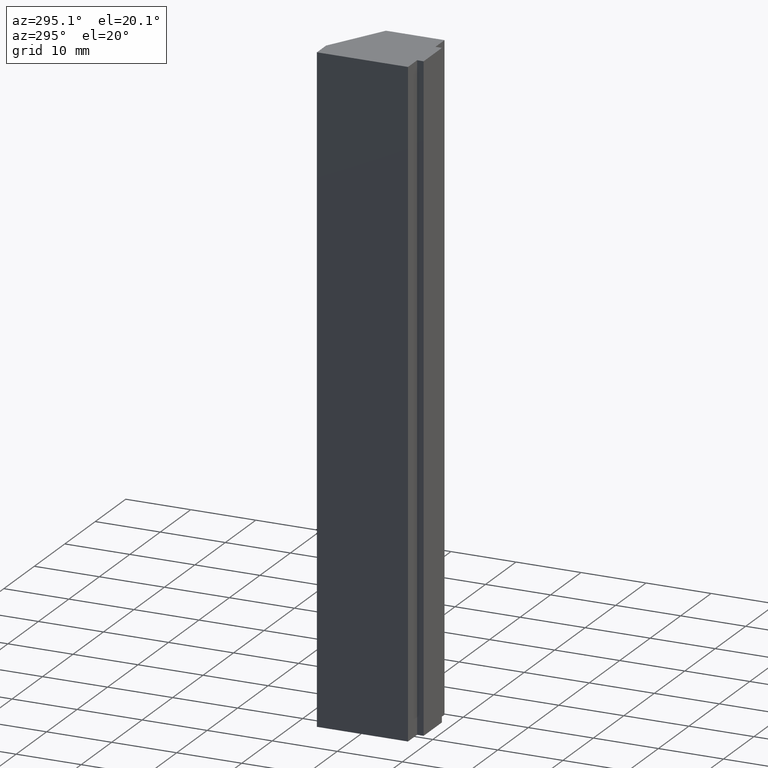
[diagram: clean part render]
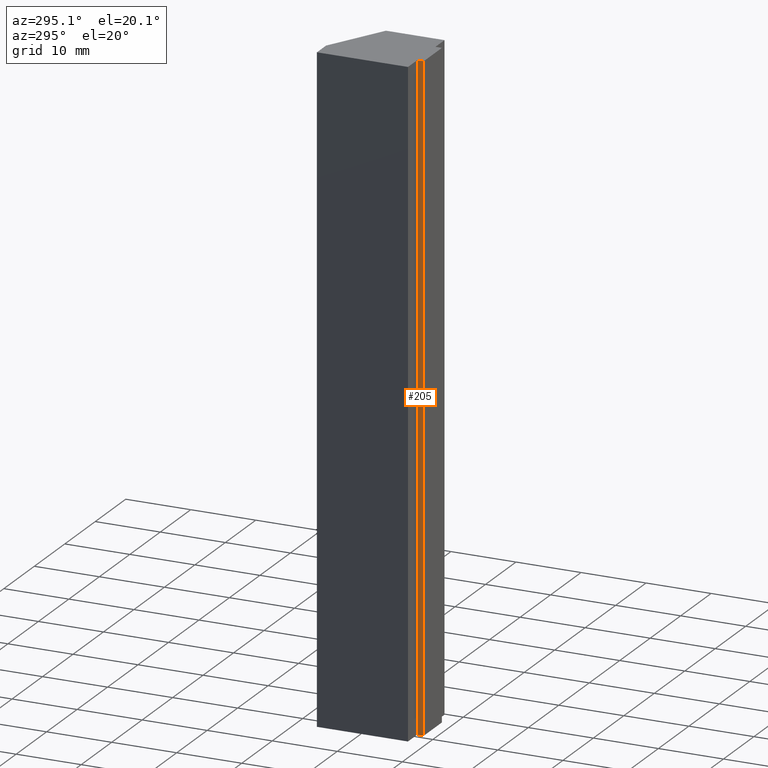
[diagram: same view with one face highlighted and labeled with its STEP entity id]
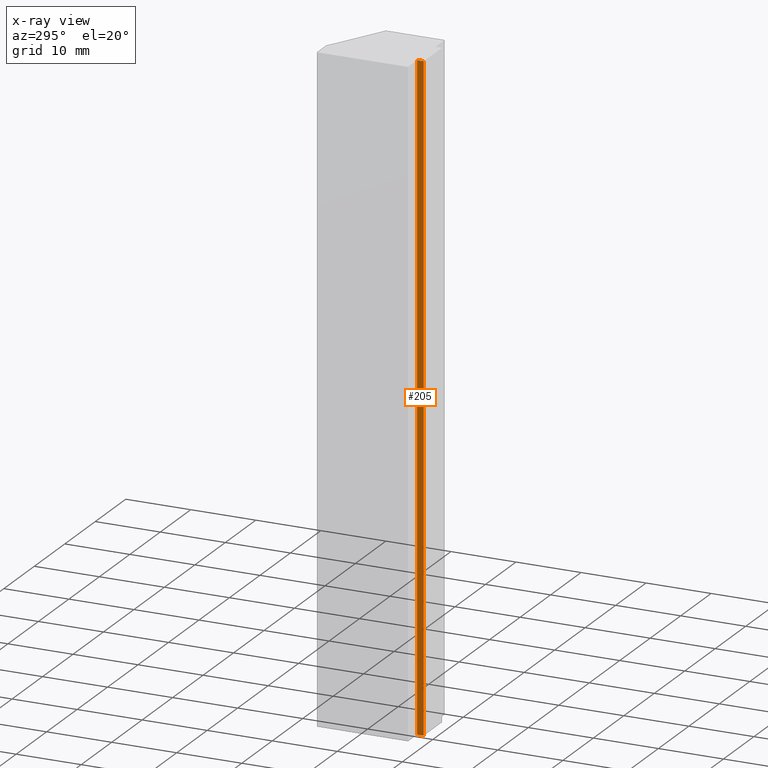
[diagram: x-ray of the same camera — body ghosted, the highlighted face saturated]
A machine part, auxiliary view. The second image highlights one B-rep face of the part: STEP entity #205.
The next image is the same camera in x-ray: the body ghosted, the highlighted face saturated — about 0% of this face is hidden behind the body in this view.
In plain terms, the highlighted planar face has unit normal (-1, 0, 0).
Its self-contained STEP definition (entity closure, byte-faithful):
#19=FACE_OUTER_BOUND('',#30,.T.);
#30=EDGE_LOOP('',(#154,#155,#156,#157));
#42=LINE('',#307,#69);
#51=LINE('',#324,#78);
#52=LINE('',#327,#79);
#53=LINE('',#328,#80);
#69=VECTOR('',#252,10.);
#78=VECTOR('',#265,10.);
#79=VECTOR('',#268,10.);
#80=VECTOR('',#269,10.);
#96=VERTEX_POINT('',#304);
#97=VERTEX_POINT('',#306);
#103=VERTEX_POINT('',#322);
#104=VERTEX_POINT('',#326);
#114=EDGE_CURVE('',#97,#96,#42,.T.);
#123=EDGE_CURVE('',#103,#96,#51,.T.);
#124=EDGE_CURVE('',#103,#104,#52,.T.);
#125=EDGE_CURVE('',#104,#97,#53,.T.);
#154=ORIENTED_EDGE('',*,*,#124,.T.);
#155=ORIENTED_EDGE('',*,*,#125,.T.);
#156=ORIENTED_EDGE('',*,*,#114,.T.);
#157=ORIENTED_EDGE('',*,*,#123,.F.);
#194=PLANE('',#236);
#205=ADVANCED_FACE('',(#19),#194,.T.);
#236=AXIS2_PLACEMENT_3D('',#325,#266,#267);
#252=DIRECTION('',(0.,-1.,0.));
#265=DIRECTION('',(0.,0.,-1.));
#266=DIRECTION('center_axis',(-1.,0.,0.));
#267=DIRECTION('ref_axis',(0.,0.,1.));
#268=DIRECTION('',(0.,1.,0.));
#269=DIRECTION('',(0.,0.,-1.));
#304=CARTESIAN_POINT('',(-3.,-1.11022302462516E-15,-50.));
#306=CARTESIAN_POINT('',(-3.,1.,-50.));
#307=CARTESIAN_POINT('',(-3.,-1.11022302462516E-15,-50.));
#322=CARTESIAN_POINT('',(-3.,-1.11022302462516E-15,50.));
#324=CARTESIAN_POINT('',(-3.,-1.11022302462516E-15,0.));
#325=CARTESIAN_POINT('Origin',(-3.,-1.11022302462516E-15,0.));
#326=CARTESIAN_POINT('',(-3.,1.,50.));
#327=CARTESIAN_POINT('',(-3.,-1.11022302462516E-15,50.));
#328=CARTESIAN_POINT('',(-3.,1.,0.));